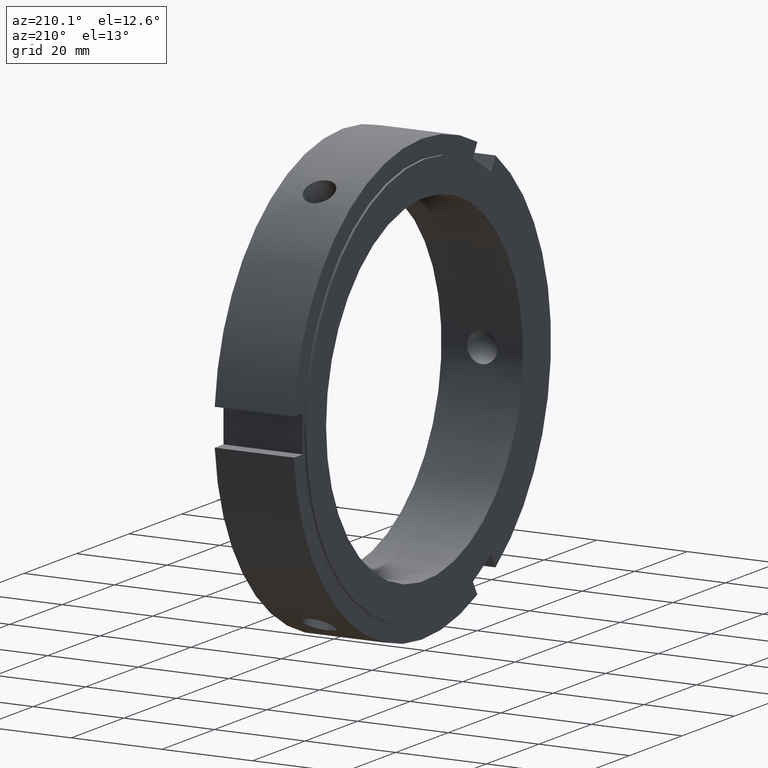
[diagram: clean part render]
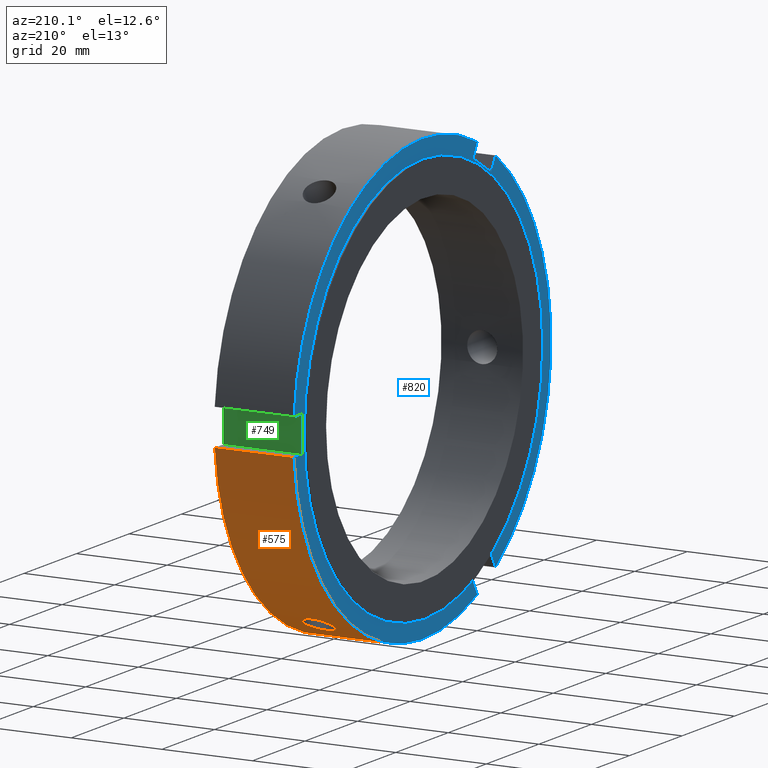
[diagram: same view with three faces highlighted in distinct colors, each labeled with its STEP entity id]
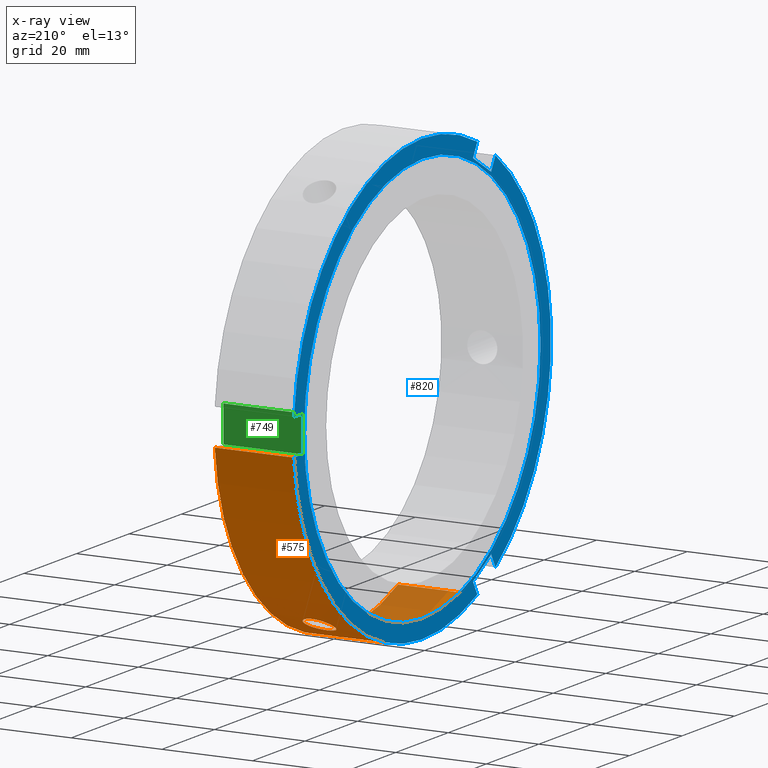
[diagram: x-ray of the same camera — body ghosted, the three highlighted faces saturated]
A machine part, auxiliary view with three faces highlighted in distinct colors.
The next image is the same camera in x-ray (body ghosted, the three faces saturated) — at least one of them is partly hidden behind the body in this view.
Their STEP definitions:

[orange] entity #575 — the highlighted cylindrical surface (partial cylindrical patch) has radius 49 mm, axis along (1, 0, 0).
#113=CARTESIAN_POINT('',(0.499999999999989,-20.954129279011831,-44.293616539615044));
#114=VERTEX_POINT('',#113);
#123=CARTESIAN_POINT('',(17.999999999999989,-20.954129279011831,-44.293616539615044));
#124=VERTEX_POINT('',#123);
#125=CARTESIAN_POINT('',(17.999999999999989,-20.954129279011827,-44.293616539615059));
#126=DIRECTION('',(-1.0,0.0,0.0));
#127=VECTOR('',#126,17.500000000000000);
#128=LINE('',#125,#127);
#129=EDGE_CURVE('',#124,#114,#128,.T.);
#365=CARTESIAN_POINT('',(8.999999999999989,21.565344237533132,-43.999271902120114));
#366=VERTEX_POINT('',#365);
#367=CARTESIAN_POINT('',(8.999999999999989,21.565344237533132,-43.999271902120121));
#368=CARTESIAN_POINT('',(9.417443722393839,21.565344237533132,-43.999271902120121));
#369=CARTESIAN_POINT('',(9.862624398836053,21.640564771982081,-43.962652746520774));
#370=CARTESIAN_POINT('',(10.681428135779383,21.944982616825030,-43.811489566680180));
#371=CARTESIAN_POINT('',(11.055062087909739,22.174019973868823,-43.696682576062393));
#372=CARTESIAN_POINT('',(11.645076475195577,22.699152444498687,-43.426209921325814));
#373=CARTESIAN_POINT('',(11.900832302418793,23.030267894022174,-43.252450610065345));
#374=CARTESIAN_POINT('',(12.240047608246488,23.750004542100108,-42.861462962609885));
#375=CARTESIAN_POINT('',(12.323499999999989,24.138483390867854,-42.643966497036452));
#376=CARTESIAN_POINT('',(12.323499999999989,24.861516609132114,-42.226523073838550));
#377=CARTESIAN_POINT('',(12.240047608246487,25.244113497935906,-41.998838754759461));
#378=CARTESIAN_POINT('',(11.900832302418793,25.942587057237215,-41.571022357217032));
#379=CARTESIAN_POINT('',(11.645076475195580,26.258624759694612,-41.371147621974430));
#380=CARTESIAN_POINT('',(11.055062087909743,26.755427185040443,-41.051605889425176));
#381=CARTESIAN_POINT('',(10.681428135779393,26.969371633969374,-40.910657215118476));
#382=CARTESIAN_POINT('',(9.862624398836061,27.252491710249643,-40.722605218039476));
#383=CARTESIAN_POINT('',(9.417443722393839,27.321815096488290,-40.675771902120132));
#384=CARTESIAN_POINT('',(8.582556277606139,27.321815096488290,-40.675771902120132));
#385=CARTESIAN_POINT('',(8.137375601163917,27.252491710249643,-40.722605218039476));
#386=CARTESIAN_POINT('',(7.318571864220587,26.969371633969374,-40.910657215118476));
#387=CARTESIAN_POINT('',(6.944937912090236,26.755427185040443,-41.051605889425176));
#388=CARTESIAN_POINT('',(6.354923524804400,26.258624759694612,-41.371147621974430));
#389=CARTESIAN_POINT('',(6.099167697581185,25.942587057237215,-41.571022357217032));
#390=CARTESIAN_POINT('',(5.759952391753490,25.244113497935906,-41.998838754759461));
#391=CARTESIAN_POINT('',(5.676499999999988,24.861516609132114,-42.226523073838550));
#392=CARTESIAN_POINT('',(5.676499999999988,24.138483390867854,-42.643966497036452));
#393=CARTESIAN_POINT('',(5.759952391753489,23.750004542100108,-42.861462962609885));
#394=CARTESIAN_POINT('',(6.099167697581185,23.030267894022174,-43.252450610065345));
#395=CARTESIAN_POINT('',(6.354923524804401,22.699152444498687,-43.426209921325814));
#396=CARTESIAN_POINT('',(6.944937912090237,22.174019973868823,-43.696682576062393));
#397=CARTESIAN_POINT('',(7.318571864220592,21.944982616825037,-43.811489566680173));
#398=CARTESIAN_POINT('',(8.137375601163924,21.640564771982085,-43.962652746520767));
#399=CARTESIAN_POINT('',(8.582556277606141,21.565344237533132,-43.999271902120121));
#400=CARTESIAN_POINT('',(8.999999999999989,21.565344237533132,-43.999271902120121));
#401=B_SPLINE_CURVE_WITH_KNOTS('',3,(#367,#368,#369,#370,#371,#372,#373,#374,#375,#376,#377,#378,#379,#380,#381,#382,#383,#384,#385,#386,#387,#388,#389,#390,#391,#392,#393,#394,#395,#396,#397,#398,#399,#400),.UNSPECIFIED.,.T.,.U.,(4,2,2,2,2,2,2,2,2,2,2,2,2,2,2,2,4),(0.0,0.125233116718155,0.250466233436310,0.375699260395683,0.500932287355057,0.626165314314430,0.751398341273803,0.876631457991958,1.001864574710113,1.127097691428268,1.252330808146424,1.377563835105797,1.502796862065170,1.628029889024543,1.753262915983916,1.878496032702071,2.003729149420226),.UNSPECIFIED.);
#402=EDGE_CURVE('',#366,#366,#401,.T.);
#456=CARTESIAN_POINT('',(17.999999999999989,48.836461788299125,-3.999999999999998));
#457=VERTEX_POINT('',#456);
#458=CARTESIAN_POINT('',(17.999999999999989,0.0,0.0));
#459=DIRECTION('',(1.0,0.0,0.0));
#460=DIRECTION('',(0.0,1.0,0.0));
#461=AXIS2_PLACEMENT_3D('',#458,#459,#460);
#462=CIRCLE('',#461,49.0);
#463=EDGE_CURVE('',#124,#457,#462,.T.);
#548=CARTESIAN_POINT('',(9.249999999999989,0.0,0.0));
#549=DIRECTION('',(1.0,0.0,0.0));
#550=DIRECTION('',(0.0,1.0,0.0));
#551=AXIS2_PLACEMENT_3D('',#548,#549,#550);
#552=CYLINDRICAL_SURFACE('',#551,49.0);
#553=ORIENTED_EDGE('',*,*,#129,.T.);
#554=CARTESIAN_POINT('',(0.499999999999989,48.836461788299125,-3.999999999999998));
#555=VERTEX_POINT('',#554);
#556=CARTESIAN_POINT('',(0.499999999999989,0.0,0.0));
#557=DIRECTION('',(1.0,0.0,0.0));
#558=DIRECTION('',(0.0,1.0,0.0));
#559=AXIS2_PLACEMENT_3D('',#556,#557,#558);
#560=CIRCLE('',#559,49.0);
#561=EDGE_CURVE('',#114,#555,#560,.T.);
#562=ORIENTED_EDGE('',*,*,#561,.T.);
#563=CARTESIAN_POINT('',(0.499999999999989,48.836461788299125,-3.999999999999998));
#564=DIRECTION('',(1.0,0.0,0.0));
#565=VECTOR('',#564,17.500000000000000);
#566=LINE('',#563,#565);
#567=EDGE_CURVE('',#555,#457,#566,.T.);
#568=ORIENTED_EDGE('',*,*,#567,.T.);
#569=ORIENTED_EDGE('',*,*,#463,.F.);
#570=EDGE_LOOP('',(#553,#562,#568,#569));
#571=FACE_OUTER_BOUND('',#570,.T.);
#572=ORIENTED_EDGE('',*,*,#402,.T.);
#573=EDGE_LOOP('',(#572));
#574=FACE_BOUND('',#573,.T.);
#575=ADVANCED_FACE('',(#571,#574),#552,.T.);

[blue] entity #820 — the highlighted planar face has unit normal (-1, 0, 0).
#73=CARTESIAN_POINT('',(0.499999999999989,-26.214101615137775,-37.404155872191957));
#74=VERTEX_POINT('',#73);
#75=CARTESIAN_POINT('',(0.499999999999989,-27.882332509287338,-40.293616539615051));
#76=VERTEX_POINT('',#75);
#77=CARTESIAN_POINT('',(0.499999999999987,-26.214101615137782,-37.404155872191964));
#78=DIRECTION('',(0.0,-0.500000000000001,-0.866025403784438));
#79=VECTOR('',#78,3.336461788299120);
#80=LINE('',#77,#79);
#81=EDGE_CURVE('',#74,#76,#80,.T.);
#113=CARTESIAN_POINT('',(0.499999999999989,-20.954129279011831,-44.293616539615044));
#114=VERTEX_POINT('',#113);
#115=CARTESIAN_POINT('',(0.499999999999989,-19.285898384862271,-41.404155872191957));
#116=VERTEX_POINT('',#115);
#117=CARTESIAN_POINT('',(0.499999999999987,-20.954129279011838,-44.293616539615059));
#118=DIRECTION('',(0.0,0.500000000000001,0.866025403784438));
#119=VECTOR('',#118,3.336461788299120);
#120=LINE('',#117,#119);
#121=EDGE_CURVE('',#114,#116,#120,.T.);
#153=CARTESIAN_POINT('',(0.499999999999987,-19.285898384862282,-41.404155872191964));
#154=DIRECTION('',(0.0,-0.866025403784438,0.500000000000000));
#155=VECTOR('',#154,7.999999999999995);
#156=LINE('',#153,#155);
#157=EDGE_CURVE('',#116,#74,#156,.T.);
#263=CARTESIAN_POINT('',(0.499999999999989,-19.285898384862243,41.404155872191964));
#264=VERTEX_POINT('',#263);
#265=CARTESIAN_POINT('',(0.499999999999989,-20.954129279011799,44.293616539615066));
#266=VERTEX_POINT('',#265);
#267=CARTESIAN_POINT('',(0.499999999999989,-19.285898384862243,41.404155872191971));
#268=DIRECTION('',(0.0,-0.500000000000000,0.866025403784439));
#269=VECTOR('',#268,3.336461788299126);
#270=LINE('',#267,#269);
#271=EDGE_CURVE('',#264,#266,#270,.T.);
#303=CARTESIAN_POINT('',(0.499999999999989,-27.882332509287306,40.293616539615059));
#304=VERTEX_POINT('',#303);
#305=CARTESIAN_POINT('',(0.499999999999989,-26.214101615137750,37.404155872191971));
#306=VERTEX_POINT('',#305);
#307=CARTESIAN_POINT('',(0.499999999999989,-27.882332509287313,40.293616539615066));
#308=DIRECTION('',(0.0,0.500000000000000,-0.866025403784439));
#309=VECTOR('',#308,3.336461788299118);
#310=LINE('',#307,#309);
#311=EDGE_CURVE('',#304,#306,#310,.T.);
#343=CARTESIAN_POINT('',(0.499999999999989,-26.214101615137753,37.404155872191978));
#344=DIRECTION('',(0.0,0.866025403784439,0.500000000000000));
#345=VECTOR('',#344,8.000000000000002);
#346=LINE('',#343,#345);
#347=EDGE_CURVE('',#306,#264,#346,.T.);
#527=CARTESIAN_POINT('',(0.499999999999989,48.836461788299125,3.999999999999998));
#528=VERTEX_POINT('',#527);
#535=CARTESIAN_POINT('',(0.499999999999989,0.0,0.0));
#536=DIRECTION('',(1.0,0.0,0.0));
#537=DIRECTION('',(0.0,1.0,0.0));
#538=AXIS2_PLACEMENT_3D('',#535,#536,#537);
#539=CIRCLE('',#538,49.0);
#540=EDGE_CURVE('',#528,#266,#539,.T.);
#554=CARTESIAN_POINT('',(0.499999999999989,48.836461788299125,-3.999999999999998));
#555=VERTEX_POINT('',#554);
#556=CARTESIAN_POINT('',(0.499999999999989,0.0,0.0));
#557=DIRECTION('',(1.0,0.0,0.0));
#558=DIRECTION('',(0.0,1.0,0.0));
#559=AXIS2_PLACEMENT_3D('',#556,#557,#558);
#560=CIRCLE('',#559,49.0);
#561=EDGE_CURVE('',#114,#555,#560,.T.);
#584=CARTESIAN_POINT('',(0.499999999999989,0.0,0.0));
#585=DIRECTION('',(1.0,0.0,0.0));
#586=DIRECTION('',(0.0,1.0,0.0));
#587=AXIS2_PLACEMENT_3D('',#584,#585,#586);
#588=CIRCLE('',#587,49.0);
#589=EDGE_CURVE('',#304,#76,#588,.T.);
#690=CARTESIAN_POINT('',(0.499999999999989,45.500000000000007,-3.999999999999998));
#691=VERTEX_POINT('',#690);
#692=CARTESIAN_POINT('',(0.499999999999988,45.500000000000007,-3.999999999999998));
#693=DIRECTION('',(0.0,1.0,0.0));
#694=VECTOR('',#693,3.336461788299118);
#695=LINE('',#692,#694);
#696=EDGE_CURVE('',#691,#555,#695,.T.);
#714=CARTESIAN_POINT('',(0.499999999999989,45.500000000000007,3.999999999999998));
#715=VERTEX_POINT('',#714);
#716=CARTESIAN_POINT('',(0.499999999999988,48.836461788299125,3.999999999999998));
#717=DIRECTION('',(0.0,-1.0,0.0));
#718=VECTOR('',#717,3.336461788299118);
#719=LINE('',#716,#718);
#720=EDGE_CURVE('',#528,#715,#719,.T.);
#738=CARTESIAN_POINT('',(0.499999999999988,45.500000000000007,3.999999999999998));
#739=DIRECTION('',(0.0,0.0,-1.0));
#740=VECTOR('',#739,7.999999999999996);
#741=LINE('',#738,#740);
#742=EDGE_CURVE('',#715,#691,#741,.T.);
#783=CARTESIAN_POINT('',(0.499999999999987,45.0,0.0));
#784=VERTEX_POINT('',#783);
#785=CARTESIAN_POINT('',(0.499999999999987,0.0,0.0));
#786=DIRECTION('',(1.0,0.0,0.0));
#787=DIRECTION('',(0.0,1.0,0.0));
#788=AXIS2_PLACEMENT_3D('',#785,#786,#787);
#789=CIRCLE('',#788,45.0);
#790=EDGE_CURVE('',#784,#784,#789,.T.);
#798=CARTESIAN_POINT('',(0.499999999999988,47.0,0.0));
#799=DIRECTION('',(-1.0,0.0,0.0));
#800=DIRECTION('',(0.0,0.0,1.0));
#801=AXIS2_PLACEMENT_3D('',#798,#799,#800);
#802=PLANE('',#801);
#803=ORIENTED_EDGE('',*,*,#81,.T.);
#804=ORIENTED_EDGE('',*,*,#589,.F.);
#805=ORIENTED_EDGE('',*,*,#311,.T.);
#806=ORIENTED_EDGE('',*,*,#347,.T.);
#807=ORIENTED_EDGE('',*,*,#271,.T.);
#808=ORIENTED_EDGE('',*,*,#540,.F.);
#809=ORIENTED_EDGE('',*,*,#720,.T.);
#810=ORIENTED_EDGE('',*,*,#742,.T.);
#811=ORIENTED_EDGE('',*,*,#696,.T.);
#812=ORIENTED_EDGE('',*,*,#561,.F.);
#813=ORIENTED_EDGE('',*,*,#121,.T.);
#814=ORIENTED_EDGE('',*,*,#157,.T.);
#815=EDGE_LOOP('',(#803,#804,#805,#806,#807,#808,#809,#810,#811,#812,#813,#814));
#816=FACE_OUTER_BOUND('',#815,.T.);
#817=ORIENTED_EDGE('',*,*,#790,.T.);
#818=EDGE_LOOP('',(#817));
#819=FACE_BOUND('',#818,.T.);
#820=ADVANCED_FACE('',(#816,#819),#802,.T.);

[green] entity #749 — the highlighted planar face has unit normal (0, -1, 0).
#465=CARTESIAN_POINT('',(17.999999999999989,45.500000000000007,-3.999999999999998));
#466=VERTEX_POINT('',#465);
#473=CARTESIAN_POINT('',(17.999999999999989,45.500000000000007,3.999999999999998));
#474=VERTEX_POINT('',#473);
#475=CARTESIAN_POINT('',(17.999999999999989,45.500000000000007,-3.999999999999997));
#476=DIRECTION('',(0.0,0.0,1.0));
#477=VECTOR('',#476,7.999999999999996);
#478=LINE('',#475,#477);
#479=EDGE_CURVE('',#466,#474,#478,.T.);
#690=CARTESIAN_POINT('',(0.499999999999989,45.500000000000007,-3.999999999999998));
#691=VERTEX_POINT('',#690);
#698=CARTESIAN_POINT('',(17.999999999999989,45.500000000000007,-3.999999999999998));
#699=DIRECTION('',(-1.0,0.0,0.0));
#700=VECTOR('',#699,17.500000000000000);
#701=LINE('',#698,#700);
#702=EDGE_CURVE('',#466,#691,#701,.T.);
#714=CARTESIAN_POINT('',(0.499999999999989,45.500000000000007,3.999999999999998));
#715=VERTEX_POINT('',#714);
#724=CARTESIAN_POINT('',(17.999999999999989,45.500000000000007,3.999999999999998));
#725=DIRECTION('',(-1.0,0.0,0.0));
#726=VECTOR('',#725,17.500000000000000);
#727=LINE('',#724,#726);
#728=EDGE_CURVE('',#474,#715,#727,.T.);
#733=CARTESIAN_POINT('',(17.999999999999989,45.500000000000007,3.999999999999998));
#734=DIRECTION('',(0.0,-1.0,0.0));
#735=DIRECTION('',(0.0,0.0,-1.0));
#736=AXIS2_PLACEMENT_3D('',#733,#734,#735);
#737=PLANE('',#736);
#738=CARTESIAN_POINT('',(0.499999999999988,45.500000000000007,3.999999999999998));
#739=DIRECTION('',(0.0,0.0,-1.0));
#740=VECTOR('',#739,7.999999999999996);
#741=LINE('',#738,#740);
#742=EDGE_CURVE('',#715,#691,#741,.T.);
#743=ORIENTED_EDGE('',*,*,#742,.F.);
#744=ORIENTED_EDGE('',*,*,#728,.F.);
#745=ORIENTED_EDGE('',*,*,#479,.F.);
#746=ORIENTED_EDGE('',*,*,#702,.T.);
#747=EDGE_LOOP('',(#743,#744,#745,#746));
#748=FACE_OUTER_BOUND('',#747,.T.);
#749=ADVANCED_FACE('',(#748),#737,.F.);